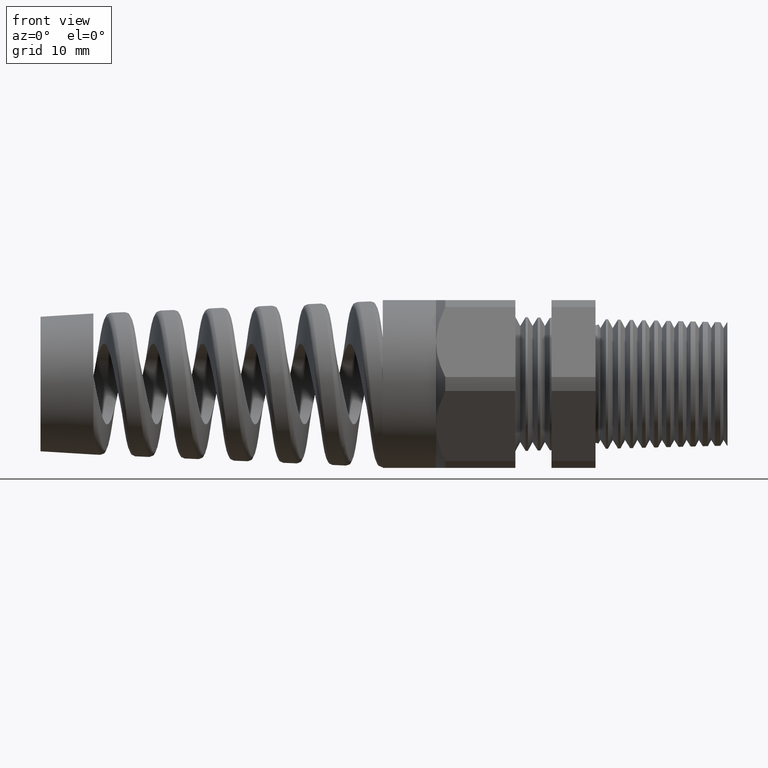
[diagram: clean part render]
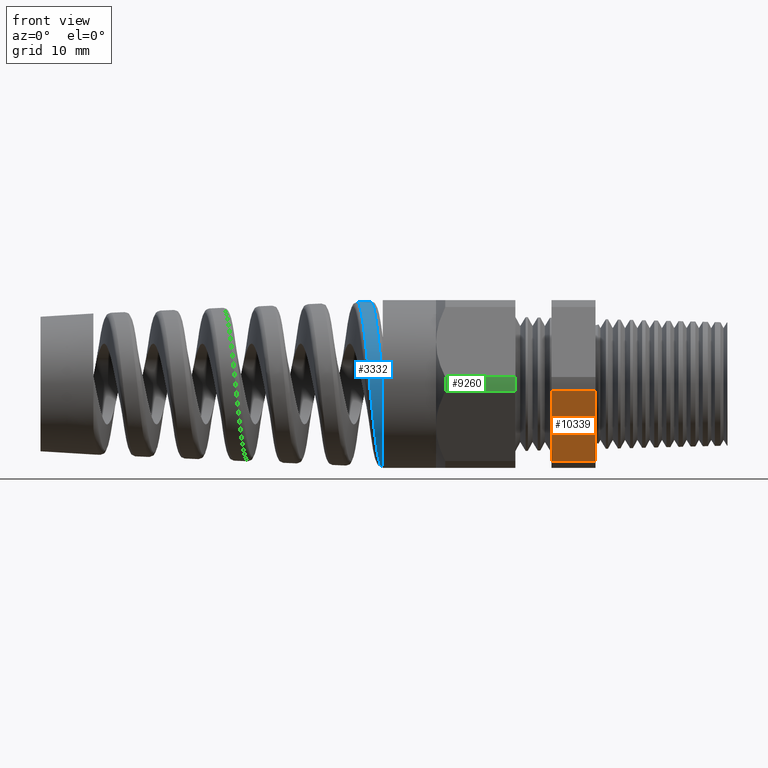
[diagram: same view with three faces highlighted in distinct colors, each labeled with its STEP entity id]
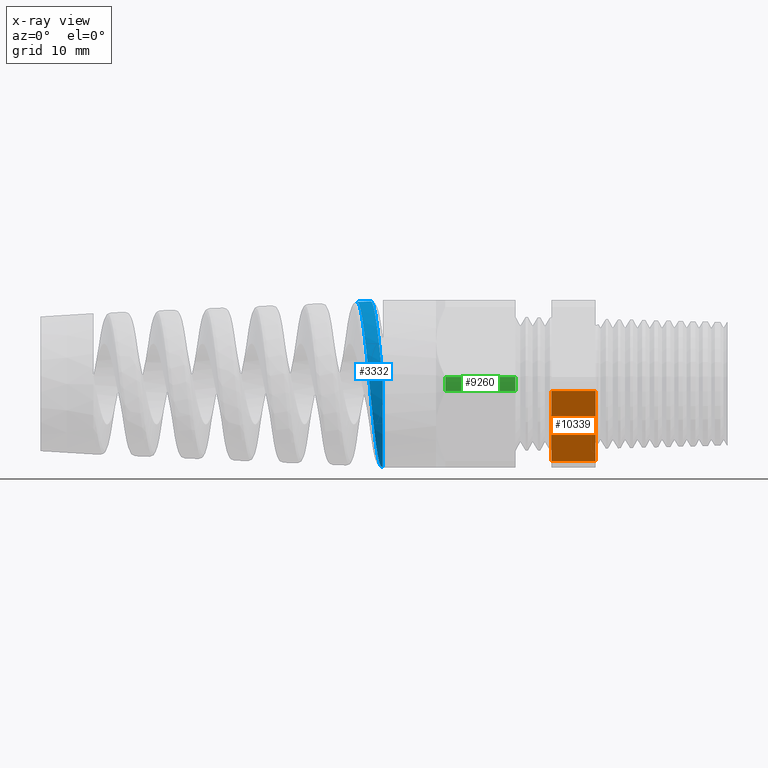
[diagram: x-ray of the same camera — body ghosted, the three highlighted faces saturated]
A machine part, front view with three faces highlighted in distinct colors.
The next image is the same camera in x-ray (body ghosted, the three faces saturated) — at least one of them is partly hidden behind the body in this view.
Their STEP definitions:

[orange] entity #10339 — the highlighted planar face has unit normal (0, -0.866, -0.5).
#84 = DIRECTION ( 'NONE',  ( -1.000000000000000000, 0.0000000000000000000, 0.0000000000000000000 ) ) ;
#85 = VECTOR ( 'NONE', #84, 39.37007874015748100 ) ;
#86 = CARTESIAN_POINT ( 'NONE',  ( 0.2800000000000001400, -0.2344281053908202100, -0.3439586107409880500 ) ) ;
#90 = LINE ( 'NONE', #86, #85 ) ;
#211 = EDGE_CURVE ( 'NONE', #11271, #213, #3771, .T. ) ;
#213 = VERTEX_POINT ( 'NONE', #3761 ) ;
#1664 = ORIENTED_EDGE ( 'NONE', *, *, #211, .F. ) ;
#1678 = ORIENTED_EDGE ( 'NONE', *, *, #1680, .F. ) ;
#1679 = ORIENTED_EDGE ( 'NONE', *, *, #10979, .F. ) ;
#1680 = EDGE_CURVE ( 'NONE', #213, #10978, #90, .T. ) ;
#1682 = ORIENTED_EDGE ( 'NONE', *, *, #10349, .T. ) ;
#2292 = DIRECTION ( 'NONE',  ( 0.0000000000000000000, 0.5000000000000001100, -0.8660254037844386000 ) ) ;
#2293 = DIRECTION ( 'NONE',  ( 0.0000000000000000000, -0.8660254037844386000, -0.5000000000000001100 ) ) ;
#2294 = CARTESIAN_POINT ( 'NONE',  ( 0.2800000000000001400, -0.2344281053908202900, -0.3439586107409879900 ) ) ;
#2295 = AXIS2_PLACEMENT_3D ( 'NONE', #2294, #2293, #2292 ) ;
#2296 = PLANE ( 'NONE',  #2295 ) ;
#2297 = FACE_OUTER_BOUND ( 'NONE', #10027, .T. ) ;
#2345 = DIRECTION ( 'NONE',  ( -1.000000000000000000, 0.0000000000000000000, 0.0000000000000000000 ) ) ;
#2346 = VECTOR ( 'NONE', #2345, 39.37007874015748100 ) ;
#2347 = CARTESIAN_POINT ( 'NONE',  ( 0.2800000000000001400, -0.4150909474475088000, -0.03104138925901223100 ) ) ;
#2348 = LINE ( 'NONE', #2347, #2346 ) ;
#2585 = CARTESIAN_POINT ( 'NONE',  ( -0.5068503937007874400, -0.4150909474475088000, -0.03104138925901223100 ) ) ;
#2645 = DIRECTION ( 'NONE',  ( 0.0000000000000000000, -0.5000000000000002200, 0.8660254037844386000 ) ) ;
#2646 = VECTOR ( 'NONE', #2645, 39.37007874015747400 ) ;
#2647 = CARTESIAN_POINT ( 'NONE',  ( -0.5068503937007874400, -0.1372595264191645600, -0.5122595264191647200 ) ) ;
#2648 = LINE ( 'NONE', #2647, #2646 ) ;
#2649 = CARTESIAN_POINT ( 'NONE',  ( -0.5068503937007874400, -0.2344281053908202100, -0.3439586107409880500 ) ) ;
#2853 = CARTESIAN_POINT ( 'NONE',  ( -0.3100000000000000000, -0.4150909474475088000, -0.03104138925901223100 ) ) ;
#3761 = CARTESIAN_POINT ( 'NONE',  ( -0.3100000000000000000, -0.2344281053908202100, -0.3439586107409880500 ) ) ;
#3768 = DIRECTION ( 'NONE',  ( 0.0000000000000000000, 0.5000000000000002200, -0.8660254037844386000 ) ) ;
#3769 = VECTOR ( 'NONE', #3768, 39.37007874015747400 ) ;
#3770 = CARTESIAN_POINT ( 'NONE',  ( -0.3100000000000000000, -0.1372595264191645600, -0.5122595264191647200 ) ) ;
#3771 = LINE ( 'NONE', #3770, #3769 ) ;
#10027 = EDGE_LOOP ( 'NONE', ( #1682, #1679, #1678, #1664 ) ) ;
#10339 = ADVANCED_FACE ( 'NONE', ( #2297 ), #2296, .T. ) ;
#10349 = EDGE_CURVE ( 'NONE', #11271, #10965, #2348, .T. ) ;
#10965 = VERTEX_POINT ( 'NONE', #2585 ) ;
#10978 = VERTEX_POINT ( 'NONE', #2649 ) ;
#10979 = EDGE_CURVE ( 'NONE', #10978, #10965, #2648, .T. ) ;
#11271 = VERTEX_POINT ( 'NONE', #2853 ) ;

[blue] entity #3332 — the highlighted conical surface has half-angle 2.5 deg.
#495 = CARTESIAN_POINT ( 'NONE',  ( -1.260843166534453300, -0.3712448434849644500, 0.01294056530646725900 ) ) ;
#590 = CARTESIAN_POINT ( 'NONE',  ( -1.314553771938867100, -5.332524780314543000E-016, 0.3691252554452522100 ) ) ;
#591 = DIRECTION ( 'NONE',  ( 0.9990482215818576900, 5.341834311772764100E-018, 0.04361938736533633300 ) ) ;
#593 = VECTOR ( 'NONE', #591, 39.37007874015748100 ) ;
#594 = CARTESIAN_POINT ( 'NONE',  ( -1.179999999999999900, 4.592425496802576100E-017, 0.3750000000000001100 ) ) ;
#595 = LINE ( 'NONE', #594, #593 ) ;
#596 = CARTESIAN_POINT ( 'NONE',  ( -1.374479362345466500, -8.117235329147407200E-017, 0.3665088476637508000 ) ) ;
#3196 = VERTEX_POINT ( 'NONE', #495 ) ;
#3255 = VERTEX_POINT ( 'NONE', #596 ) ;
#3257 = EDGE_CURVE ( 'NONE', #3255, #3258, #595, .T. ) ;
#3258 = VERTEX_POINT ( 'NONE', #590 ) ;
#3326 = ORIENTED_EDGE ( 'NONE', *, *, #3328, .T. ) ;
#3327 = VERTEX_POINT ( 'NONE', #7123 ) ;
#3328 = EDGE_CURVE ( 'NONE', #3255, #3327, #7120, .T. ) ;
#3329 = EDGE_LOOP ( 'NONE', ( #3333, #3326, #3544, #3625, #3623 ) ) ;
#3332 = ADVANCED_FACE ( 'NONE', ( #7179 ), #7210, .T. ) ;
#3333 = ORIENTED_EDGE ( 'NONE', *, *, #3257, .F. ) ;
#3544 = ORIENTED_EDGE ( 'NONE', *, *, #3627, .T. ) ;
#3545 = VERTEX_POINT ( 'NONE', #7933 ) ;
#3623 = ORIENTED_EDGE ( 'NONE', *, *, #3624, .T. ) ;
#3624 = EDGE_CURVE ( 'NONE', #3196, #3258, #8366, .T. ) ;
#3625 = ORIENTED_EDGE ( 'NONE', *, *, #3626, .F. ) ;
#3626 = EDGE_CURVE ( 'NONE', #3196, #3545, #8335, .T. ) ;
#3627 = EDGE_CURVE ( 'NONE', #3327, #3545, #8360, .T. ) ;
#7093 = CARTESIAN_POINT ( 'NONE',  ( -1.314646127562895800, -0.3659251785098137600, -0.04994656157696865400 ) ) ;
#7094 = CARTESIAN_POINT ( 'NONE',  ( -1.316937282164621900, -0.3683053755003289400, -0.02594622019191390000 ) ) ;
#7095 = CARTESIAN_POINT ( 'NONE',  ( -1.319217228749202600, -0.3695021078934619400, -0.001930850518345764800 ) ) ;
#7096 = CARTESIAN_POINT ( 'NONE',  ( -1.321499090134497800, -0.3683568543364106900, 0.02211195926516516500 ) ) ;
#7097 = CARTESIAN_POINT ( 'NONE',  ( -1.323794213406021400, -0.3660196167378699200, 0.04616756227684210000 ) ) ;
#7098 = CARTESIAN_POINT ( 'NONE',  ( -1.324954753546822700, -0.3642392279982562000, 0.05826672254193170100 ) ) ;
#7099 = CARTESIAN_POINT ( 'NONE',  ( -1.328411629544726600, -0.3571731638605993300, 0.09392414677992495800 ) ) ;
#7100 = CARTESIAN_POINT ( 'NONE',  ( -1.330691634572085600, -0.3502006238014535600, 0.1169316507073924100 ) ) ;
#7101 = CARTESIAN_POINT ( 'NONE',  ( -1.335284264539283500, -0.3318179052226424800, 0.1614393244298604800 ) ) ;
#7102 = CARTESIAN_POINT ( 'NONE',  ( -1.337614787826218600, -0.3202508358792739400, 0.1831153380453333400 ) ) ;
#7103 = CARTESIAN_POINT ( 'NONE',  ( -1.342201636959345900, -0.2934795985720039500, 0.2231908307392477000 ) ) ;
#7104 = CARTESIAN_POINT ( 'NONE',  ( -1.344477008654378200, -0.2782433754857235300, 0.2417785993387565600 ) ) ;
#7105 = CARTESIAN_POINT ( 'NONE',  ( -1.347936421797145500, -0.2525795895506770000, 0.2674500316020466700 ) ) ;
#7106 = CARTESIAN_POINT ( 'NONE',  ( -1.349102193028727200, -0.2435104008093360600, 0.2756650455586469600 ) ) ;
#7107 = CARTESIAN_POINT ( 'NONE',  ( -1.351412508621000500, -0.2247930032490886600, 0.2910025516719480000 ) ) ;
#7108 = CARTESIAN_POINT ( 'NONE',  ( -1.352561973331943200, -0.2151115249008841700, 0.2981652572218428900 ) ) ;
#7109 = CARTESIAN_POINT ( 'NONE',  ( -1.356008370048591000, -0.1851193606129898400, 0.3181649114913961400 ) ) ;
#7110 = CARTESIAN_POINT ( 'NONE',  ( -1.358306044639753900, -0.1638223107393219600, 0.3295479169080519100 ) ) ;
#7111 = CARTESIAN_POINT ( 'NONE',  ( -1.362952771494031500, -0.1188040561334539200, 0.3481037416307003500 ) ) ;
#7112 = CARTESIAN_POINT ( 'NONE',  ( -1.365237485074045400, -0.09574142808928905200, 0.3550158477327059500 ) ) ;
#7113 = CARTESIAN_POINT ( 'NONE',  ( -1.368681960297115900, -0.06035401836255534200, 0.3619616448433909900 ) ) ;
#7114 = CARTESIAN_POINT ( 'NONE',  ( -1.369832894537521300, -0.04842498807024545700, 0.3637023415738525600 ) ) ;
#7115 = CARTESIAN_POINT ( 'NONE',  ( -1.372152127559813900, -0.02429482953773941600, 0.3660052975890276100 ) ) ;
#7116 = CARTESIAN_POINT ( 'NONE',  ( -1.373321653964460400, -0.01208086506773722200, 0.3665593943032787200 ) ) ;
#7117 = CARTESIAN_POINT ( 'NONE',  ( -1.374479362345466500, -8.117235329147407200E-017, 0.3665088476637508000 ) ) ;
#7120 = B_SPLINE_CURVE_WITH_KNOTS ( 'NONE', 3,
 ( #7117, #7116, #7115, #7114, #7113, #7112, #7111, #7110, #7109, #7108, #7107, #7106, #7105, #7104, #7103, #7102, #7101, #7100, #7099, #7098, #7097, #7096, #7095, #7094, #7093, #8618, #8649, #8650, #8651, #8654, #8660, #8694, #8682, #8713, #8709, #8718, #8730, #8706, #8684, #8678, #8702, #8664, #8677, #8658, #8729, #8666, #8688, #8657, #8689 ),
 .UNSPECIFIED., .F., .F.,
 ( 4, 2, 2, 2, 2, 2, 2, 2, 2, 2, 2, 1, 2, 2, 2, 2, 2, 2, 2, 2, 2, 2, 2, 2, 4 ),
 ( 0.2954387359554277400, 0.2963722622949013800, 0.2973057886343750100, 0.2991728413133222200, 0.3010398939922694900, 0.3019734203317430700, 0.3029069466712167000, 0.3047739993501639700, 0.3066410520291111800, 0.3085081047080584500, 0.3094416310475320800, 0.3103751573870056600, 0.3113086837264793000, 0.3122422100659529300, 0.3141092627449002000, 0.3150427890843737800, 0.3159763154238474100, 0.3178433681027946800, 0.3187768944422683100, 0.3197104207817418900, 0.3215774734606891600, 0.3225109998001627900, 0.3234445261396363700, 0.3243780524791100000, 0.3253115788185836400 ),
 .UNSPECIFIED. ) ;
#7123 = CARTESIAN_POINT ( 'NONE',  ( -1.264309899649711300, 3.665443090510236100E-015, -0.3713189502847716300 ) ) ;
#7179 = FACE_OUTER_BOUND ( 'NONE', #3329, .T. ) ;
#7206 = DIRECTION ( 'NONE',  ( 0.0000000000000000000, 0.0000000000000000000, -1.000000000000000000 ) ) ;
#7207 = DIRECTION ( 'NONE',  ( 1.000000000000000000, 0.0000000000000000000, 0.0000000000000000000 ) ) ;
#7208 = CARTESIAN_POINT ( 'NONE',  ( -1.179999999999999900, 0.0000000000000000000, 0.0000000000000000000 ) ) ;
#7209 = AXIS2_PLACEMENT_3D ( 'NONE', #7208, #7207, #7206 ) ;
#7210 = CONICAL_SURFACE ( 'NONE', #7209, 0.3750000000000001100, 0.04363323129985857000 ) ;
#7933 = CARTESIAN_POINT ( 'NONE',  ( -1.260843166534453300, 0.0000000000000000000, -0.3714703111213959500 ) ) ;
#8332 = DIRECTION ( 'NONE',  ( 1.000000000000000000, 0.0000000000000000000, 0.0000000000000000000 ) ) ;
#8333 = CARTESIAN_POINT ( 'NONE',  ( -1.260843166534453300, 0.0000000000000000000, 0.0000000000000000000 ) ) ;
#8334 = AXIS2_PLACEMENT_3D ( 'NONE', #8333, #8332, #8361 ) ;
#8335 = CIRCLE ( 'NONE', #8334, 0.3714703111213959500 ) ;
#8336 = CARTESIAN_POINT ( 'NONE',  ( -1.314553771938867100, -5.332524780314543000E-016, 0.3691252554452522100 ) ) ;
#8337 = CARTESIAN_POINT ( 'NONE',  ( -1.312300256864004100, -0.02380251446233543100, 0.3692236460382796200 ) ) ;
#8338 = CARTESIAN_POINT ( 'NONE',  ( -1.310074070680874400, -0.04729488949489200200, 0.3670396596065841300 ) ) ;
#8339 = CARTESIAN_POINT ( 'NONE',  ( -1.306717686499312900, -0.08207485267566419500, 0.3604290864267352700 ) ) ;
#8340 = CARTESIAN_POINT ( 'NONE',  ( -1.305596247552042000, -0.09359123851835830800, 0.3576659883577870700 ) ) ;
#8341 = CARTESIAN_POINT ( 'NONE',  ( -1.303340253547370200, -0.1164649944966593700, 0.3509885863771916600 ) ) ;
#8342 = CARTESIAN_POINT ( 'NONE',  ( -1.302210884746254100, -0.1277711372359442200, 0.3470824795064761900 ) ) ;
#8343 = CARTESIAN_POINT ( 'NONE',  ( -1.298856308321429700, -0.1607418997411936600, 0.3338898386257069800 ) ) ;
#8344 = CARTESIAN_POINT ( 'NONE',  ( -1.296643029563352000, -0.1816897043333042800, 0.3230805891182500500 ) ) ;
#8345 = CARTESIAN_POINT ( 'NONE',  ( -1.293289424602664300, -0.2115565038683203400, 0.3038482828658778400 ) ) ;
#8346 = CARTESIAN_POINT ( 'NONE',  ( -1.292160150401998400, -0.2212989974884492200, 0.2968918738166281800 ) ) ;
#8347 = CARTESIAN_POINT ( 'NONE',  ( -1.289909570327099500, -0.2399884913071225500, 0.2821281609013224200 ) ) ;
#8348 = CARTESIAN_POINT ( 'NONE',  ( -1.288791468276537300, -0.2489128567921289100, 0.2743477985514786200 ) ) ;
#8349 = CARTESIAN_POINT ( 'NONE',  ( -1.285444114957011300, -0.2744587386289706900, 0.2498451911685910000 ) ) ;
#8350 = CARTESIAN_POINT ( 'NONE',  ( -1.283222559998944000, -0.2898641528565212800, 0.2319718380611738900 ) ) ;
#8351 = CARTESIAN_POINT ( 'NONE',  ( -1.279854866303948600, -0.3104664981151097300, 0.2027966448083306000 ) ) ;
#8352 = CARTESIAN_POINT ( 'NONE',  ( -1.278727950974568800, -0.3168931202141743700, 0.1926906416398743200 ) ) ;
#8353 = CARTESIAN_POINT ( 'NONE',  ( -1.276497328315143700, -0.3286319556565067700, 0.1721167740754271600 ) ) ;
#8354 = CARTESIAN_POINT ( 'NONE',  ( -1.274277986314206600, -0.3393316248147156800, 0.1510789614274818100 ) ) ;
#8355 = CARTESIAN_POINT ( 'NONE',  ( -1.272058632163064000, -0.3479832729526154400, 0.1291290961674889700 ) ) ;
#8356 = CARTESIAN_POINT ( 'NONE',  ( -1.269828578983091900, -0.3555981784777252900, 0.1067186424326353200 ) ) ;
#8357 = DIRECTION ( 'NONE',  ( 0.9990482215818576900, 0.0000000000000000000, -0.04361938736533633300 ) ) ;
#8358 = VECTOR ( 'NONE', #8357, 39.37007874015748100 ) ;
#8359 = CARTESIAN_POINT ( 'NONE',  ( -1.179999999999999900, 0.0000000000000000000, -0.3750000000000001100 ) ) ;
#8360 = LINE ( 'NONE', #8359, #8358 ) ;
#8361 = DIRECTION ( 'NONE',  ( 0.0000000000000000000, 0.0000000000000000000, 1.000000000000000000 ) ) ;
#8362 = CARTESIAN_POINT ( 'NONE',  ( -1.268704138687525100, -0.3588967506890840000, 0.09524101507955609600 ) ) ;
#8363 = CARTESIAN_POINT ( 'NONE',  ( -1.265328106026084800, -0.3671061688954129800, 0.06039409575184705200 ) ) ;
#8364 = CARTESIAN_POINT ( 'NONE',  ( -1.263093716487861100, -0.3703137336737052900, 0.03683199625782211700 ) ) ;
#8365 = CARTESIAN_POINT ( 'NONE',  ( -1.260843166534453300, -0.3712448434849644500, 0.01294056530646725900 ) ) ;
#8366 = B_SPLINE_CURVE_WITH_KNOTS ( 'NONE', 3,
 ( #8365, #8364, #8363, #8362, #8356, #8355, #8354, #8353, #8352, #8351, #8350, #8349, #8348, #8347, #8346, #8345, #8344, #8343, #8342, #8341, #8340, #8339, #8338, #8337, #8336 ),
 .UNSPECIFIED., .F., .F.,
 ( 4, 2, 2, 1, 2, 2, 2, 2, 2, 2, 2, 2, 4 ),
 ( 1.626303258728256700E-019, 0.001819899794266684800, 0.002729849691400027000, 0.003639799588533369200, 0.004549749485666712200, 0.005459699382800056600, 0.007279599177066744400, 0.008189549074200087900, 0.009099498971333431400, 0.01091939876560012000, 0.01182934866273346400, 0.01273929855986680700, 0.01455919835413349600 ),
 .UNSPECIFIED. ) ;
#8618 = CARTESIAN_POINT ( 'NONE',  ( -1.313489466355719100, -0.3641330216863606900, -0.06198890200826902300 ) ) ;
#8649 = CARTESIAN_POINT ( 'NONE',  ( -1.310020687152516400, -0.3569828287085823300, -0.09774326336429120500 ) ) ;
#8650 = CARTESIAN_POINT ( 'NONE',  ( -1.307743198162520000, -0.3499559030723895500, -0.1207571384429081000 ) ) ;
#8651 = CARTESIAN_POINT ( 'NONE',  ( -1.304319863377417800, -0.3361365418702880700, -0.1540789874983745100 ) ) ;
#8654 = CARTESIAN_POINT ( 'NONE',  ( -1.303177476295911200, -0.3309796689325561500, -0.1649850000541841800 ) ) ;
#8657 = CARTESIAN_POINT ( 'NONE',  ( -1.265456084907093500, -0.01212749738601363200, -0.3712689067556870800 ) ) ;
#8658 = CARTESIAN_POINT ( 'NONE',  ( -1.272307324448229500, -0.08380010316856981200, -0.3615804819628797300 ) ) ;
#8660 = CARTESIAN_POINT ( 'NONE',  ( -1.300878373627418500, -0.3195360729976133900, -0.1863826860387917400 ) ) ;
#8664 = CARTESIAN_POINT ( 'NONE',  ( -1.275721595270168400, -0.1185312187543750700, -0.3515734503743903100 ) ) ;
#8666 = CARTESIAN_POINT ( 'NONE',  ( -1.268896363919865200, -0.04835536908621797900, -0.3681530759887125000 ) ) ;
#8677 = CARTESIAN_POINT ( 'NONE',  ( -1.273442308774044700, -0.09545737700183540300, -0.3586296766070645700 ) ) ;
#8678 = CARTESIAN_POINT ( 'NONE',  ( -1.280312931845235100, -0.1636358240087171800, -0.3334258450819312400 ) ) ;
#8682 = CARTESIAN_POINT ( 'NONE',  ( -1.296294227225266200, -0.2931139391561715100, -0.2269578535906613700 ) ) ;
#8684 = CARTESIAN_POINT ( 'NONE',  ( -1.282575765311821900, -0.1848249632932894000, -0.3220317036922318300 ) ) ;
#8688 = CARTESIAN_POINT ( 'NONE',  ( -1.266610549865143200, -0.02432843773067134400, -0.3706172446627724000 ) ) ;
#8689 = CARTESIAN_POINT ( 'NONE',  ( -1.264309899649711300, 3.665443090510236100E-015, -0.3713189502847716300 ) ) ;
#8694 = CARTESIAN_POINT ( 'NONE',  ( -1.299723420792692200, -0.3132512394644314000, -0.1968535190197207900 ) ) ;
#8702 = CARTESIAN_POINT ( 'NONE',  ( -1.276871379092362900, -0.1300018005039016400, -0.3474447105049434700 ) ) ;
#8706 = CARTESIAN_POINT ( 'NONE',  ( -1.285992603303160300, -0.2148052027717527700, -0.3019585633847913200 ) ) ;
#8709 = CARTESIAN_POINT ( 'NONE',  ( -1.290594754794966300, -0.2522878725746826000, -0.2711517770426128400 ) ) ;
#8713 = CARTESIAN_POINT ( 'NONE',  ( -1.294029920682010500, -0.2778706655465692500, -0.2455326185193880100 ) ) ;
#8718 = CARTESIAN_POINT ( 'NONE',  ( -1.289437948942309600, -0.2432538831642255300, -0.2793547975041619800 ) ) ;
#8729 = CARTESIAN_POINT ( 'NONE',  ( -1.270034091548033700, -0.06024912438357538100, -0.3663421811594930700 ) ) ;
#8730 = CARTESIAN_POINT ( 'NONE',  ( -1.287135157101694000, -0.2244959283658959400, -0.2947670072333039000 ) ) ;

[green] entity #9260 — the highlighted cylindrical surface (partial cylindrical patch) has radius 10.5728 mm, axis along (-1, 0, 0).
#2084 = CARTESIAN_POINT ( 'NONE',  ( -0.6681889763779528300, -0.4150909474475089100, 0.03104138925901169000 ) ) ;
#2087 = CARTESIAN_POINT ( 'NONE',  ( -0.9812696850393700700, -0.4150909474475089100, 0.03104138925901172100 ) ) ;
#2170 = DIRECTION ( 'NONE',  ( 0.0000000000000000000, 0.0000000000000000000, -1.000000000000000000 ) ) ;
#2171 = DIRECTION ( 'NONE',  ( 1.000000000000000000, 0.0000000000000000000, 0.0000000000000000000 ) ) ;
#2172 = CARTESIAN_POINT ( 'NONE',  ( -0.6681889763779528300, 0.0000000000000000000, 0.0000000000000000000 ) ) ;
#2173 = AXIS2_PLACEMENT_3D ( 'NONE', #2172, #2171, #2170 ) ;
#2174 = CIRCLE ( 'NONE', #2173, 0.4162500000000001200 ) ;
#2194 = DIRECTION ( 'NONE',  ( -1.000000000000000000, 0.0000000000000000000, 0.0000000000000000000 ) ) ;
#2195 = VECTOR ( 'NONE', #2194, 39.37007874015748100 ) ;
#2196 = CARTESIAN_POINT ( 'NONE',  ( 0.2800000000000001400, -0.4150909474475089100, 0.03104138925901169000 ) ) ;
#2197 = LINE ( 'NONE', #2196, #2195 ) ;
#2216 = DIRECTION ( 'NONE',  ( 0.0000000000000000000, 0.0000000000000000000, -1.000000000000000000 ) ) ;
#2217 = DIRECTION ( 'NONE',  ( 1.000000000000000000, 0.0000000000000000000, 0.0000000000000000000 ) ) ;
#2218 = CARTESIAN_POINT ( 'NONE',  ( -0.9812696850393700700, 0.0000000000000000000, 0.0000000000000000000 ) ) ;
#2219 = AXIS2_PLACEMENT_3D ( 'NONE', #2218, #2217, #2216 ) ;
#2220 = CIRCLE ( 'NONE', #2219, 0.4162500000000001200 ) ;
#4180 = CARTESIAN_POINT ( 'NONE',  ( -0.6681889763779528300, -0.4150909474475088000, -0.03104138925901223100 ) ) ;
#4181 = CARTESIAN_POINT ( 'NONE',  ( -0.9812696850393700700, -0.4150909474475088500, -0.03104138925901224100 ) ) ;
#6069 = DIRECTION ( 'NONE',  ( 0.0000000000000000000, 0.0000000000000000000, 1.000000000000000000 ) ) ;
#6070 = DIRECTION ( 'NONE',  ( -1.000000000000000000, 0.0000000000000000000, 0.0000000000000000000 ) ) ;
#6071 = CARTESIAN_POINT ( 'NONE',  ( 0.2800000000000001400, 0.0000000000000000000, 0.0000000000000000000 ) ) ;
#6072 = AXIS2_PLACEMENT_3D ( 'NONE', #6071, #6070, #6069 ) ;
#6073 = CYLINDRICAL_SURFACE ( 'NONE', #6072, 0.4162500000000001200 ) ;
#6074 = FACE_OUTER_BOUND ( 'NONE', #9183, .T. ) ;
#6324 = DIRECTION ( 'NONE',  ( -1.000000000000000000, 0.0000000000000000000, 0.0000000000000000000 ) ) ;
#6333 = VECTOR ( 'NONE', #6324, 39.37007874015748100 ) ;
#6334 = CARTESIAN_POINT ( 'NONE',  ( 0.2800000000000001400, -0.4150909474475088000, -0.03104138925901223100 ) ) ;
#6335 = LINE ( 'NONE', #6334, #6333 ) ;
#9183 = EDGE_LOOP ( 'NONE', ( #9259, #10055, #10039, #10054 ) ) ;
#9216 = VERTEX_POINT ( 'NONE', #4181 ) ;
#9217 = VERTEX_POINT ( 'NONE', #4180 ) ;
#9259 = ORIENTED_EDGE ( 'NONE', *, *, #10249, .T. ) ;
#9260 = ADVANCED_FACE ( 'NONE', ( #6074 ), #6073, .T. ) ;
#9844 = EDGE_CURVE ( 'NONE', #9217, #9216, #6335, .T. ) ;
#10039 = ORIENTED_EDGE ( 'NONE', *, *, #9844, .F. ) ;
#10054 = ORIENTED_EDGE ( 'NONE', *, *, #10075, .F. ) ;
#10055 = ORIENTED_EDGE ( 'NONE', *, *, #10234, .T. ) ;
#10060 = VERTEX_POINT ( 'NONE', #2087 ) ;
#10063 = VERTEX_POINT ( 'NONE', #2084 ) ;
#10075 = EDGE_CURVE ( 'NONE', #10063, #9217, #2174, .T. ) ;
#10234 = EDGE_CURVE ( 'NONE', #10060, #9216, #2220, .T. ) ;
#10249 = EDGE_CURVE ( 'NONE', #10063, #10060, #2197, .T. ) ;